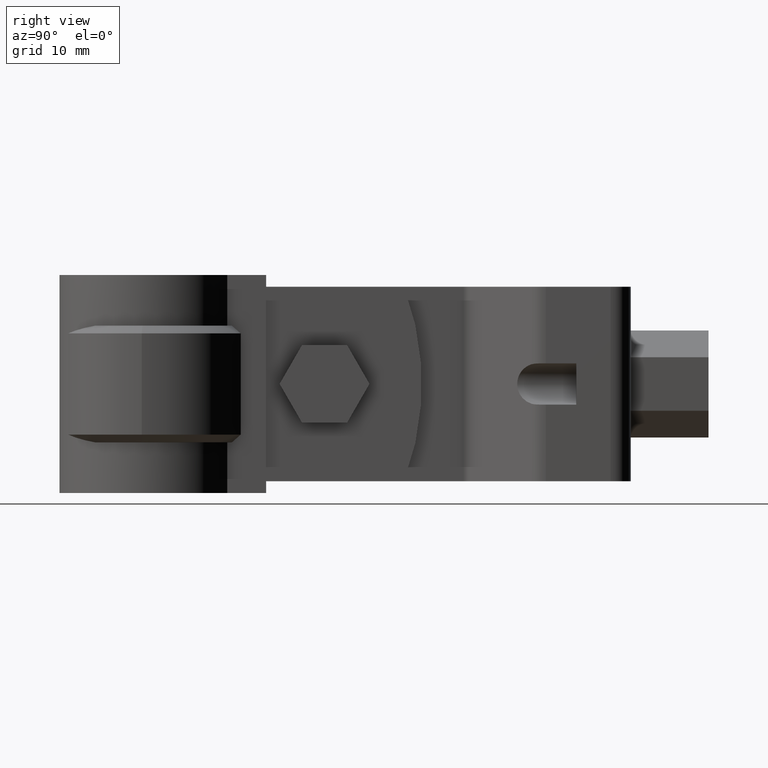
[diagram: clean part render]
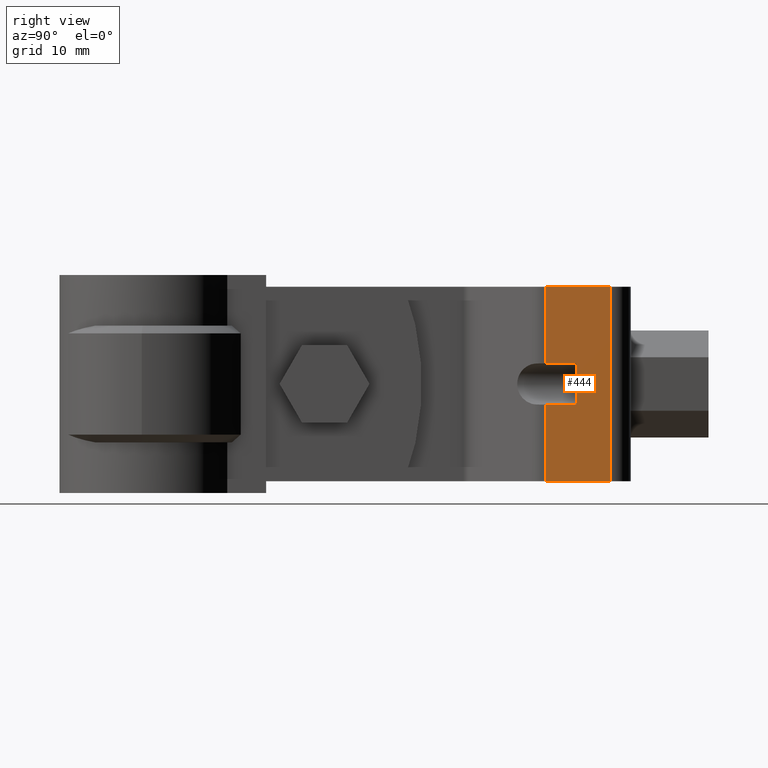
[diagram: same view with one face highlighted and labeled with its STEP entity id]
A machine part, right view. The second image highlights one B-rep face of the part: STEP entity #444.
In plain terms, the highlighted planar face has unit normal (1, 0, 0).
Its self-contained STEP definition (entity closure, byte-faithful):
#444 = ADVANCED_FACE( '', ( #793 ), #794, .T. );
#793 = FACE_OUTER_BOUND( '', #1819, .T. );
#794 = PLANE( '', #1820 );
#1819 = EDGE_LOOP( '', ( #4060, #4061, #4062, #4063, #4064, #4065, #4066, #4067 ) );
#1820 = AXIS2_PLACEMENT_3D( '', #4068, #4069, #4070 );
#4060 = ORIENTED_EDGE( '', *, *, #5105, .T. );
#4061 = ORIENTED_EDGE( '', *, *, #5106, .T. );
#4062 = ORIENTED_EDGE( '', *, *, #5107, .F. );
#4063 = ORIENTED_EDGE( '', *, *, #5066, .F. );
#4064 = ORIENTED_EDGE( '', *, *, #5103, .T. );
#4065 = ORIENTED_EDGE( '', *, *, #5091, .T. );
#4066 = ORIENTED_EDGE( '', *, *, #5101, .F. );
#4067 = ORIENTED_EDGE( '', *, *, #5087, .F. );
#4068 = CARTESIAN_POINT( '', ( 12.2499999999976, 50.8912819001019, -6.70352662268670E-010 ) );
#4069 = DIRECTION( '', ( 1.00000000000000, 1.50449475640573E-013, 2.12762802151961E-013 ) );
#4070 = DIRECTION( '', ( 1.50449475639474E-013, -1.00000000000000, 5.16559017782484E-012 ) );
#5066 = EDGE_CURVE( '', #5902, #5904, #5905, .T. );
#5087 = EDGE_CURVE( '', #5941, #5943, #5944, .T. );
#5091 = EDGE_CURVE( '', #5951, #5949, #5952, .T. );
#5101 = EDGE_CURVE( '', #5943, #5949, #5968, .T. );
#5103 = EDGE_CURVE( '', #5902, #5951, #5970, .T. );
#5105 = EDGE_CURVE( '', #5941, #5972, #5973, .T. );
#5106 = EDGE_CURVE( '', #5972, #5974, #5975, .T. );
#5107 = EDGE_CURVE( '', #5904, #5974, #5976, .T. );
#5902 = VERTEX_POINT( '', #8368 );
#5904 = VERTEX_POINT( '', #8370 );
#5905 = LINE( '', #8371, #8372 );
#5941 = VERTEX_POINT( '', #8418 );
#5943 = VERTEX_POINT( '', #8429 );
#5944 = LINE( '', #8430, #8431 );
#5949 = VERTEX_POINT( '', #8436 );
#5951 = VERTEX_POINT( '', #8438 );
#5952 = LINE( '', #8439, #8440 );
#5968 = LINE( '', #8477, #8478 );
#5970 = LINE( '', #8481, #8482 );
#5972 = VERTEX_POINT( '', #8485 );
#5973 = LINE( '', #8486, #8487 );
#5974 = VERTEX_POINT( '', #8488 );
#5975 = LINE( '', #8489, #8490 );
#5976 = LINE( '', #8491, #8492 );
#8368 = CARTESIAN_POINT( '', ( 12.2499999999976, 50.8912819001019, -6.70352662268670E-010 ) );
#8370 = CARTESIAN_POINT( '', ( 12.2499999999964, 59.1954761009878, -7.13248904382624E-010 ) );
#8371 = CARTESIAN_POINT( '', ( 12.2499999999976, 50.8912819001019, -6.70352662268670E-010 ) );
#8372 = VECTOR( '', #9393, 1000.00000000000 );
#8418 = CARTESIAN_POINT( '', ( 12.2500000000008, 50.8912819000236, -15.1500000006703 ) );
#8429 = CARTESIAN_POINT( '', ( 12.2500000000003, 54.7954761009093, -15.1500000006905 ) );
#8430 = CARTESIAN_POINT( '', ( 12.2500000000018, 44.7954761009093, -15.1500000006388 ) );
#8431 = VECTOR( '', #9431, 1000.00000000000 );
#8436 = CARTESIAN_POINT( '', ( 12.2499999999991, 54.7954761009367, -9.85000000069054 ) );
#8438 = CARTESIAN_POINT( '', ( 12.2499999999997, 50.8912819000510, -9.85000000067038 ) );
#8439 = CARTESIAN_POINT( '', ( 12.2500000000006, 44.7954761009367, -9.85000000063889 ) );
#8440 = VECTOR( '', #9441, 1000.00000000000 );
#8477 = CARTESIAN_POINT( '', ( 12.2500000000006, 54.7954761009013, -16.7500000006905 ) );
#8478 = VECTOR( '', #9452, 1000.00000000000 );
#8481 = CARTESIAN_POINT( '', ( 12.2499999999976, 50.8912819001019, -6.70352662268670E-010 ) );
#8482 = VECTOR( '', #9454, 1000.00000000000 );
#8485 = CARTESIAN_POINT( '', ( 12.2500000000029, 50.8912818999728, -25.0000000006703 ) );
#8486 = CARTESIAN_POINT( '', ( 12.2499999999976, 50.8912819001019, -6.70352662268670E-010 ) );
#8487 = VECTOR( '', #9456, 1000.00000000000 );
#8488 = CARTESIAN_POINT( '', ( 12.2500000000017, 59.1954761008587, -25.0000000007132 ) );
#8489 = CARTESIAN_POINT( '', ( 12.2500000000029, 50.8912818999728, -25.0000000006703 ) );
#8490 = VECTOR( '', #9457, 1000.00000000000 );
#8491 = CARTESIAN_POINT( '', ( 12.2499999999964, 59.1954761009878, -7.13248904382624E-010 ) );
#8492 = VECTOR( '', #9458, 1000.00000000000 );
#9393 = DIRECTION( '', ( -1.50449475639474E-013, 1.00000000000000, -5.16559017782484E-012 ) );
#9431 = DIRECTION( '', ( -1.50449475639474E-013, 1.00000000000000, -5.16559017782484E-012 ) );
#9441 = DIRECTION( '', ( -1.50449475639474E-013, 1.00000000000000, -5.16559017782484E-012 ) );
#9452 = DIRECTION( '', ( -2.12760951616757E-013, 5.16559017782481E-012, 1.00000000000000 ) );
#9454 = DIRECTION( '', ( 2.12762802152738E-013, -5.16559017782481E-012, -1.00000000000000 ) );
#9456 = DIRECTION( '', ( 2.12762802152738E-013, -5.16559017782481E-012, -1.00000000000000 ) );
#9457 = DIRECTION( '', ( -1.50449475639474E-013, 1.00000000000000, -5.16559017782484E-012 ) );
#9458 = DIRECTION( '', ( 2.12762802152738E-013, -5.16559017782481E-012, -1.00000000000000 ) );